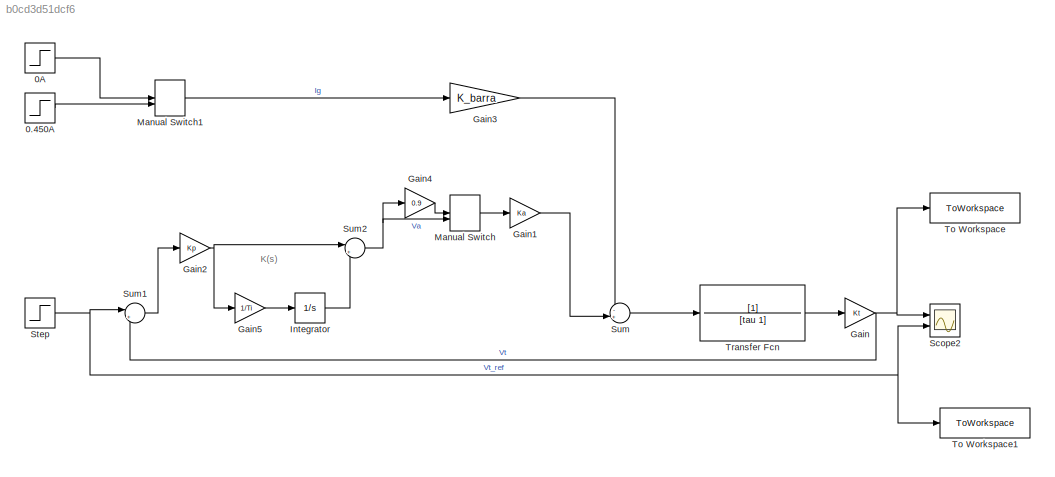
MODEL slx_b0cd3d51dcf6
KIND model
CONFIG AbsTol = auto
CONFIG EnableMultiTasking = off
CONFIG FixedStep = auto
CONFIG MaxStep = auto
CONFIG MinStep = auto
CONFIG RelTol = 1e-3
CONFIG SampleTimeConstraint = Unconstrained
CONFIG SolverName = VariableStepAuto
CONFIG StartTime = 0.0
CONFIG StopTime = 2
BLOCK [Step] 0.450A
  After = 0.450
  SampleTime = 0
  Time = 0
BLOCK [Step] 0A
  After = 0
  SampleTime = 0
  Time = 0
BLOCK [Gain] Gain
  Gain = Kt
BLOCK [Gain] Gain1
  Gain = Ka
BLOCK [Gain] Gain2
  Gain = Kp
BLOCK [Gain] Gain3
  Gain = K_barra
BLOCK [Gain] Gain4
  Gain = 0.9
BLOCK [Gain] Gain5
  Gain = 1/Ti
BLOCK [Integrator] Integrator
  Ports = [1, 1]
BLOCK [ManualSwitch] Manual Switch
  CurrentSetting = 0
BLOCK [ManualSwitch] Manual Switch1
BLOCK [Scope] Scope2
  Floating = off
  NumInputPorts = 2
  Ports = [2]
  ScopeSpecificationString = Simulink.scopes.TimeScopeBlockCfg('CurrentConfiguration', extmgr.ConfigurationSet(extmgr.Configuration('Core','General UI',true),extmgr.Configuration('Core','Source UI',true),extmgr.Configuration('Sources','WiredSimulink',true,'SampleTime','0.0001'),extmgr.Configuration('Visuals','Time Domain',true,'SerializedDisplays',{struct('MinYLimReal','-1.25','MaxYLimReal','11.25','YLabelReal','','MinYLimMag...<+1618ch>
BLOCK [Step] Step
  After = 10
  SampleTime = 0
  Time = 0
BLOCK [Sum] Sum
  Inputs = -+|
  Ports = [2, 1]
BLOCK [Sum] Sum1
  Inputs = |+-
  Ports = [2, 1]
BLOCK [Sum] Sum2
  Inputs = |++
  Ports = [2, 1]
BLOCK [ToWorkspace] To Workspace
  FixptAsFi = on
  MaxDataPoints = inf
  Ports = [1]
  SampleTime = -1
  SaveFormat = Timeseries
  VariableName = vt
BLOCK [ToWorkspace] To Workspace1
  FixptAsFi = on
  MaxDataPoints = inf
  Ports = [1]
  SampleTime = -1
  SaveFormat = Timeseries
  VariableName = vt_ref
BLOCK [TransferFcn] Transfer Fcn
  Denominator = [tau 1]
ANNOTATION (root): K(s)
LINE 0.450A:1 -> Manual Switch1:2
LINE 0A:1 -> Manual Switch1:1
LINE Gain1:1 -> Sum:2
NET Gain2:1 -> Gain5:1, Sum2:1
LINE Gain3:1 -> Sum:1
LINE Gain4:1 -> Manual Switch:1
LINE Gain5:1 -> Integrator:1
NET Gain:1 -> Scope2:1, Sum1:2, To Workspace:1
LINE Integrator:1 -> Sum2:2
LINE Manual Switch1:1 -> Gain3:1
LINE Manual Switch:1 -> Gain1:1
NET Step:1 -> Scope2:2, Sum1:1, To Workspace1:1
LINE Sum1:1 -> Gain2:1
NET Sum2:1 -> Gain4:1, Manual Switch:2
LINE Sum:1 -> Transfer Fcn:1
LINE Transfer Fcn:1 -> Gain:1
note: NET lines group one-source signal fan-out (src -> all destinations, sorted); 1:1 wires keep LINE
